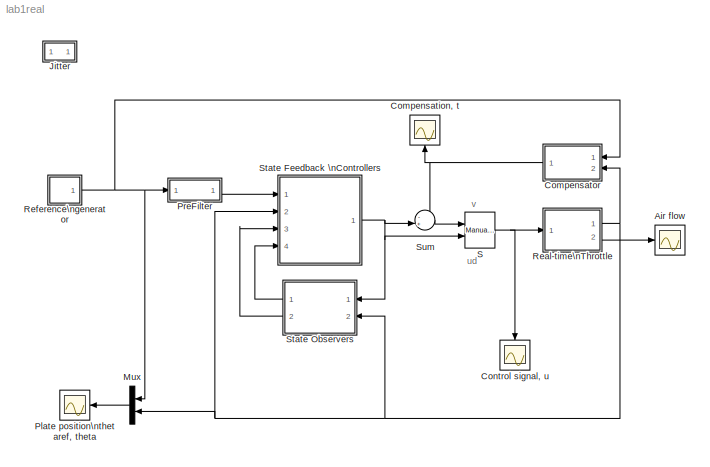
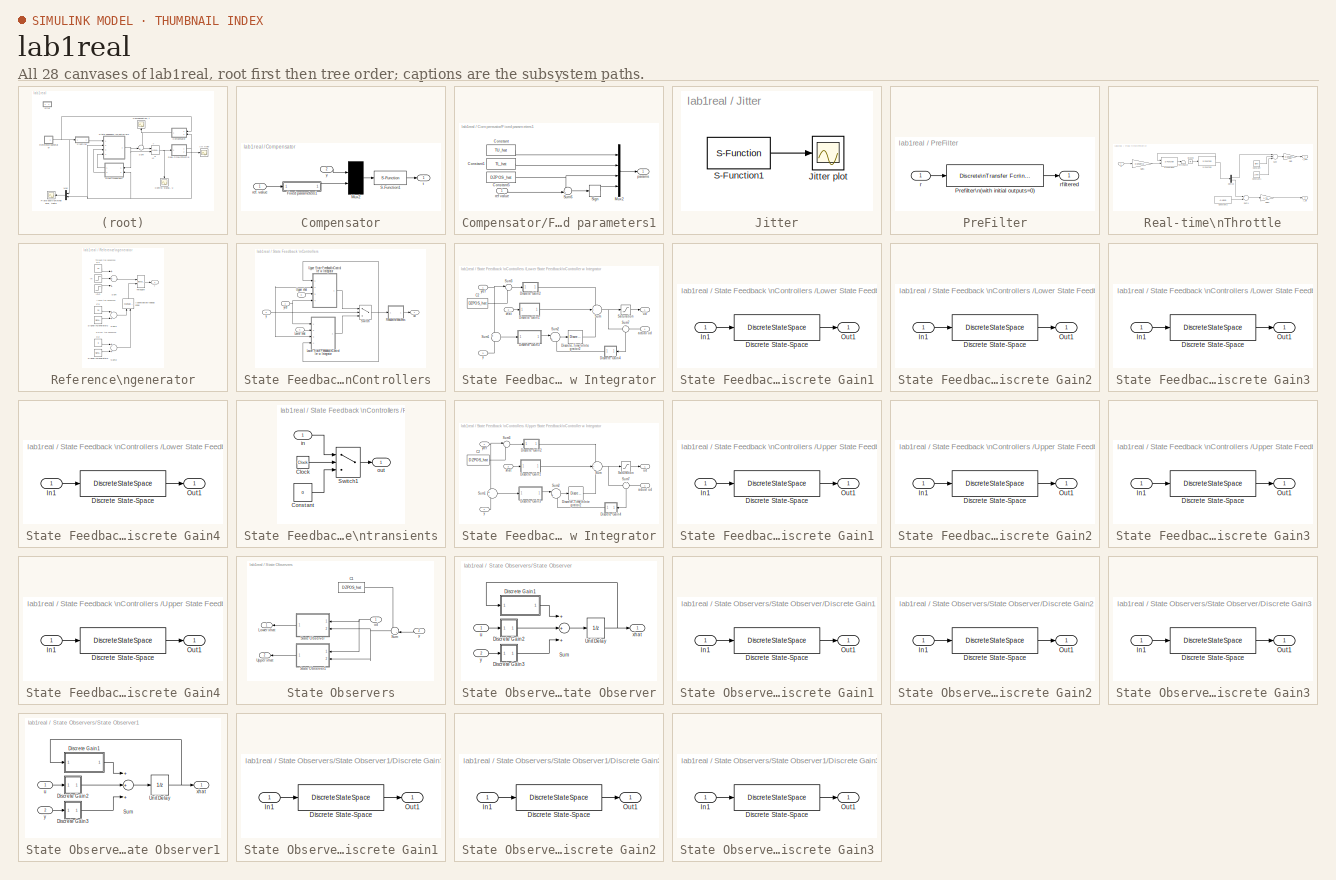
[diagram: thumbnail index - all 28 canvases of the model, root first then tree order]
MODEL lab1real
KIND model
BLOCK [Scope] Air flow
  DataFormat = StructureWithTime
  Floating = off
  LimitDataPoints = off
  NumInputPorts = 1
  Ports = [1]
  SID = 1
  SampleTime = 0
  SaveName = ScopeData1
  ShowLegends = off
  TimeRange = 12
  YMax = 45
  YMin = 17.5
BLOCK [Scope] Compensation, t
  DataFormat = StructureWithTime
  Floating = off
  LimitDataPoints = off
  NumInputPorts = 1
  Ports = [1]
  SID = 2
  SampleTime = 0
  ShowLegends = off
  TimeRange = 20
  YMax = 1
  YMin = -1.25
BLOCK [SubSystem] Compensator
  FunctionWithSeparateData = off
  MaskHideContents = off
  MinAlgLoopOccurrences = off
  Opaque = off
  Ports = [2, 1]
  PropExecContextOutsideSubsystem = off
  RTWSystemCode = Auto
  RequestExecContextInheritance = off
  SID = 3
BLOCK [SubSystem] Compensator/Fixed parameters1
  FunctionWithSeparateData = off
  MaskHideContents = off
  MinAlgLoopOccurrences = off
  Opaque = off
  Ports = [1, 1]
  PropExecContextOutsideSubsystem = off
  RTWSystemCode = Auto
  RequestExecContextInheritance = off
  SID = 182
BLOCK [Constant] Compensator/Fixed parameters1/Constant
  SID = 184
  Value = TU_hat
BLOCK [Constant] Compensator/Fixed parameters1/Constant1
  SID = 185
  Value = TL_hat
BLOCK [Constant] Compensator/Fixed parameters1/Constant5
  SID = 186
  Value = DZPOS_hat
BLOCK [Mux] Compensator/Fixed parameters1/Mux2
  DisplayOption = bar
  Ports = [4, 1]
  SID = 187
BLOCK [Signum] Compensator/Fixed parameters1/Sign
  SID = 188
BLOCK [Sum] Compensator/Fixed parameters1/Sum6
  IconShape = round
  Inputs = -+|
  Ports = [2, 1]
  SID = 189
BLOCK [Outport] Compensator/Fixed parameters1/params
  IconDisplay = Port number
  SID = 190
BLOCK [Inport] Compensator/Fixed parameters1/ref value
  IconDisplay = Port number
  SID = 183
BLOCK [Mux] Compensator/Mux2
  Inputs = 2
  Ports = [2, 1]
  SID = 15
BLOCK [S-Function] Compensator/S-Function1
  EnableBusSupport = off
  FunctionName = compensator
  Parameters = h 0*fixwidth/2 -0*fixwidth/2
  Ports = [1, 1]
  SID = 16
BLOCK [Inport] Compensator/ref. value
  IconDisplay = Port number
  SID = 4
BLOCK [Outport] Compensator/t
  IconDisplay = Port number
  SID = 17
BLOCK [Inport] Compensator/y
  IconDisplay = Port number
  Port = 2
  SID = 5
BLOCK [Scope] Control signal, u
  DataFormat = StructureWithTime
  Floating = off
  LimitDataPoints = off
  NumInputPorts = 1
  Ports = [1]
  SID = 18
  SampleTime = 0
  ShowLegends = off
  TimeRange = 12
  YMax = 2
  YMin = 0.8
  ZoomMode = xonly
BLOCK [SubSystem] Jitter
  FunctionWithSeparateData = off
  MaskHideContents = off
  MinAlgLoopOccurrences = off
  Opaque = off
  Ports = []
  PropExecContextOutsideSubsystem = off
  RTWSystemCode = Auto
  RequestExecContextInheritance = off
  SID = 19
BLOCK [Scope] Jitter/Jitter plot
  DataFormat = StructureWithTime
  Floating = off
  LimitDataPoints = off
  NumInputPorts = 1
  Ports = [1]
  SID = 20
  SampleTime = 0
  ShowLegends = off
  TimeRange = 10
  YMax = 1
  YMin = 5.55112e-17
  ZoomMode = xonly
BLOCK [S-Function] Jitter/S-Function1
  EnableBusSupport = off
  FunctionName = realtimer
  Parameters = h
  Ports = [0, 1]
  SID = 21
BLOCK [Mux] Mux
  DisplayOption = bar
  Inputs = 2
  Ports = [2, 1]
  SID = 22
BLOCK [Scope] Plate position\nthetaref, theta
  DataFormat = StructureWithTime
  Floating = off
  LimitDataPoints = off
  NumInputPorts = 1
  Ports = [1]
  SID = 23
  SampleTime = 0
  ShowLegends = off
  TimeRange = 12
  YMax = 45
  YMin = 17.5
BLOCK [SubSystem] PreFilter
  FunctionWithSeparateData = off
  MaskHideContents = off
  MinAlgLoopOccurrences = off
  Opaque = off
  Ports = [1, 1]
  PropExecContextOutsideSubsystem = off
  RTWSystemCode = Auto
  RequestExecContextInheritance = off
  SID = 24
BLOCK [Reference] PreFilter/Prefilter\n(with initial outputs=0)  REF=simulink_extras/Additional\nDiscrete/Discrete\nTransfer Fcn\n(with initial outputs)
  D = [835 -1596 763]
  N = [21.3 1 -20.3]
  Ports = [1, 1]
  SID = 26
  SourceBlock = simulink_extras/Additional\nDiscrete/Discrete\nTransfer Fcn\n(with initial outputs)
  SourceType = Discrete Transfer Function with Initial Outputs
  TS = h
  U0 = [DZPOS_hat]
  Y0 = DZPOS_hat
BLOCK [Inport] PreFilter/r
  IconDisplay = Port number
  SID = 25
BLOCK [Outport] PreFilter/rfiltered
  IconDisplay = Port number
  SID = 27
BLOCK [SubSystem] Real-time\nThrottle
  FunctionWithSeparateData = off
  MaskHideContents = off
  MinAlgLoopOccurrences = off
  Opaque = off
  Ports = [1, 2]
  PropExecContextOutsideSubsystem = off
  RTWSystemCode = Auto
  RequestExecContextInheritance = off
  SID = 28
BLOCK [Constant] Real-time\nThrottle/Constant
  SID = 30
  Value = Offset
BLOCK [Constant] Real-time\nThrottle/Constant1
  SID = 31
  Value = Lower
BLOCK [Constant] Real-time\nThrottle/Constant2
  SID = 32
  Value = -0.4615
BLOCK [Demux] Real-time\nThrottle/Demux
  Outputs = 2
  Ports = [1, 2]
  SID = 33
BLOCK [Gain] Real-time\nThrottle/Gain
  Gain = Convert
  SID = 34
BLOCK [Gain] Real-time\nThrottle/Gain1
  Gain = Convert2
  SID = 35
BLOCK [Gain] Real-time\nThrottle/Gain2
  Gain = 1.73
  SID = 36
BLOCK [Ground] Real-time\nThrottle/Ground
  SID = 37
BLOCK [S-Function] Real-time\nThrottle/S-Function
  EnableBusSupport = off
  FunctionName = analogin
  Parameters = h [0 1]
  Ports = [1, 2]
  SID = 38
BLOCK [S-Function] Real-time\nThrottle/S-Function2
  EnableBusSupport = off
  FunctionName = analogout
  Parameters = h [0]
  Ports = [2, 1]
  SID = 39
BLOCK [Sum] Real-time\nThrottle/Sum
  Inputs = +--
  Ports = [3, 1]
  SID = 40
BLOCK [Sum] Real-time\nThrottle/Sum1
  Ports = [2, 1]
  SID = 41
BLOCK [Terminator] Real-time\nThrottle/Terminator
  SID = 42
BLOCK [Inport] Real-time\nThrottle/u
  IconDisplay = Port number
  SID = 29
BLOCK [Outport] Real-time\nThrottle/y_air
  IconDisplay = Port number
  Port = 2
  SID = 44
BLOCK [Outport] Real-time\nThrottle/y_pos
  IconDisplay = Port number
  SID = 43
BLOCK [SubSystem] Reference\ngenerator
  FunctionWithSeparateData = off
  MaskHideContents = off
  MinAlgLoopOccurrences = off
  Opaque = off
  Ports = [0, 1]
  PropExecContextOutsideSubsystem = off
  RTWSystemCode = Auto
  RequestExecContextInheritance = off
  SID = 45
BLOCK [Reference] Reference\ngenerator/Above//below\ndeadzone  REF=simulink/Signal\nRouting/Manual Switch
  Ports = [2, 1]
  SID = 48
  SourceBlock = simulink/Signal\nRouting/Manual Switch
  SourceType = Manual Switch
  action = 0
  sw = 1
  varsize = off
BLOCK [Constant] Reference\ngenerator/C2
  SID = 49
  Value = 8
BLOCK [Constant] Reference\ngenerator/C3
  SID = 50
  Value = 30
BLOCK [Constant] Reference\ngenerator/C4
  SID = 51
  Value = 15
BLOCK [SignalGenerator] Reference\ngenerator/Signal\nGenerator2
  Amplitude = -5
  Frequency = 0.125
  Ports = [0, 1]
  SID = 52
  WaveForm = square
BLOCK [SignalGenerator] Reference\ngenerator/Signal\nGenerator3
  Amplitude = 5
  Frequency = 0.125
  Ports = [0, 1]
  SID = 53
  WaveForm = square
BLOCK [Sum] Reference\ngenerator/Sum
  Inputs = +++
  Ports = [3, 1]
  SID = 54
BLOCK [Sum] Reference\ngenerator/Sum1
  Ports = [2, 1]
  SID = 55
BLOCK [Sum] Reference\ngenerator/Sum2
  Ports = [2, 1]
  SID = 56
BLOCK [Reference] Reference\ngenerator/Through?  REF=simulink/Signal\nRouting/Manual Switch
  Ports = [2, 1]
  SID = 57
  SourceBlock = simulink/Signal\nRouting/Manual Switch
  SourceType = Manual Switch
  action = 0
  sw = 0
  varsize = off
BLOCK [Step] Reference\ngenerator/\n
  After = -6
  SID = 46
  SampleTime = 0
  Time = 8
BLOCK [Step] Reference\ngenerator/\n\n
  After = 6
  SID = 47
  SampleTime = 0
  Time = 4
BLOCK [Outport] Reference\ngenerator/r
  IconDisplay = Port number
  SID = 58
BLOCK [Reference] S  REF=simulink/Signal\nRouting/Manual Switch
  Ports = [2, 1]
  SID = 62
  SourceBlock = simulink/Signal\nRouting/Manual Switch
  SourceType = Manual Switch
  action = 0
  sw = 1
  varsize = off
BLOCK [SubSystem] State Feedback \nControllers 
  FunctionWithSeparateData = off
  MaskHideContents = off
  MinAlgLoopOccurrences = off
  Opaque = off
  Ports = [4, 1]
  PropExecContextOutsideSubsystem = off
  RTWSystemCode = Auto
  RequestExecContextInheritance = off
  SID = 63
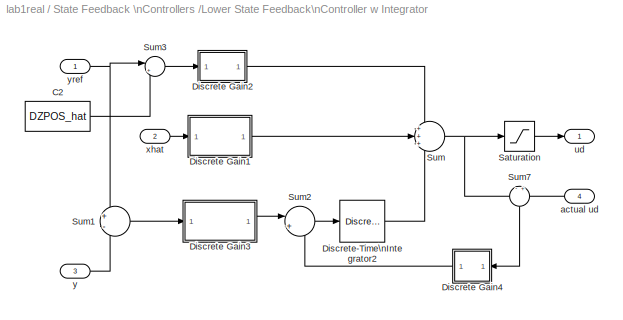
BLOCK [SubSystem] State Feedback \nControllers /Lower State Feedback\nController w Integrator
  FunctionWithSeparateData = off
  MaskHideContents = off
  MinAlgLoopOccurrences = off
  Opaque = off
  Ports = [4, 1]
  PropExecContextOutsideSubsystem = off
  RTWSystemCode = Auto
  RequestExecContextInheritance = off
  SID = 68
BLOCK [Constant] State Feedback \nControllers /Lower State Feedback\nController w Integrator/C2
  SID = 73
  Value = DZPOS_hat
BLOCK [SubSystem] State Feedback \nControllers /Lower State Feedback\nController w Integrator/Discrete Gain1
  FunctionWithSeparateData = off
  MaskCallbackString = |
  MaskDisplay = disp(s)
  MaskEnableString = on,on
  MaskHideContents = off
  MaskIconFrame = on
  MaskIconOpaque = on
  MaskIconRotate = none
  MaskIconUnits = normalized
  MaskInitialization = s = get_param(gcb,'MaskValueString');\ns = s(findstr(s,'|')+1:end);
  MaskPortRotate = default
  MaskPromptString = Sample Time|Gain
  MaskStyleString = edit,edit
  MaskToolTipString = on,on
  MaskTunableValueString = on,on
  MaskType = Discrete Gain
  MaskValueString = h|-lLe(1:3)
  MaskVariables = h=@1;K=@2;
  MaskVisibilityString = on,on
  MinAlgLoopOccurrences = off
  Opaque = off
  Ports = [1, 1]
  PropExecContextOutsideSubsystem = off
  RTWSystemCode = Auto
  RequestExecContextInheritance = off
  SID = 74
BLOCK [DiscreteStateSpace] State Feedback \nControllers /Lower State Feedback\nController w Integrator/Discrete Gain1/Discrete State-Space
  A = 0
  B = zeros(1,size(K,2))
  C = zeros(size(K,1),1)
  D = K
  SID = 76
  SampleTime = h
BLOCK [Inport] State Feedback \nControllers /Lower State Feedback\nController w Integrator/Discrete Gain1/In1
  IconDisplay = Port number
  SID = 75
BLOCK [Outport] State Feedback \nControllers /Lower State Feedback\nController w Integrator/Discrete Gain1/Out1
  IconDisplay = Port number
  SID = 77
BLOCK [SubSystem] State Feedback \nControllers /Lower State Feedback\nController w Integrator/Discrete Gain2
  FunctionWithSeparateData = off
  MaskCallbackString = |
  MaskDisplay = disp(s)
  MaskEnableString = on,on
  MaskHideContents = off
  MaskIconFrame = on
  MaskIconOpaque = on
  MaskIconRotate = none
  MaskIconUnits = normalized
  MaskInitialization = s = get_param(gcb,'MaskValueString');\ns = s(findstr(s,'|')+1:end);
  MaskPortRotate = default
  MaskPromptString = Sample Time|Gain
  MaskStyleString = edit,edit
  MaskToolTipString = on,on
  MaskTunableValueString = on,on
  MaskType = Discrete Gain
  MaskValueString = h|lLc
  MaskVariables = h=@1;K=@2;
  MaskVisibilityString = on,on
  MinAlgLoopOccurrences = off
  Opaque = off
  Ports = [1, 1]
  PropExecContextOutsideSubsystem = off
  RTWSystemCode = Auto
  RequestExecContextInheritance = off
  SID = 78
BLOCK [DiscreteStateSpace] State Feedback \nControllers /Lower State Feedback\nController w Integrator/Discrete Gain2/Discrete State-Space
  A = 0
  B = zeros(1,size(K,2))
  C = zeros(size(K,1),1)
  D = K
  SID = 80
  SampleTime = h
BLOCK [Inport] State Feedback \nControllers /Lower State Feedback\nController w Integrator/Discrete Gain2/In1
  IconDisplay = Port number
  SID = 79
BLOCK [Outport] State Feedback \nControllers /Lower State Feedback\nController w Integrator/Discrete Gain2/Out1
  IconDisplay = Port number
  SID = 81
BLOCK [SubSystem] State Feedback \nControllers /Lower State Feedback\nController w Integrator/Discrete Gain3
  FunctionWithSeparateData = off
  MaskCallbackString = |
  MaskDisplay = disp(s)
  MaskEnableString = on,on
  MaskHideContents = off
  MaskIconFrame = on
  MaskIconOpaque = on
  MaskIconRotate = none
  MaskIconUnits = normalized
  MaskInitialization = s = get_param(gcb,'MaskValueString');\ns = s(findstr(s,'|')+1:end);
  MaskPortRotate = default
  MaskPromptString = Sample Time|Gain
  MaskStyleString = edit,edit
  MaskToolTipString = on,on
  MaskTunableValueString = on,on
  MaskType = Discrete Gain
  MaskValueString = h|-lLe(4)
  MaskVariables = h=@1;K=@2;
  MaskVisibilityString = on,on
  MinAlgLoopOccurrences = off
  Opaque = off
  Ports = [1, 1]
  PropExecContextOutsideSubsystem = off
  RTWSystemCode = Auto
  RequestExecContextInheritance = off
  SID = 82
BLOCK [DiscreteStateSpace] State Feedback \nControllers /Lower State Feedback\nController w Integrator/Discrete Gain3/Discrete State-Space
  A = 0
  B = zeros(1,size(K,2))
  C = zeros(size(K,1),1)
  D = K
  SID = 84
  SampleTime = h
BLOCK [Inport] State Feedback \nControllers /Lower State Feedback\nController w Integrator/Discrete Gain3/In1
  IconDisplay = Port number
  SID = 83
BLOCK [Outport] State Feedback \nControllers /Lower State Feedback\nController w Integrator/Discrete Gain3/Out1
  IconDisplay = Port number
  SID = 85
BLOCK [SubSystem] State Feedback \nControllers /Lower State Feedback\nController w Integrator/Discrete Gain4
  FunctionWithSeparateData = off
  MaskCallbackString = |
  MaskDisplay = disp(s)
  MaskEnableString = on,on
  MaskHideContents = off
  MaskIconFrame = on
  MaskIconOpaque = on
  MaskIconRotate = none
  MaskIconUnits = normalized
  MaskInitialization = s = get_param(gcb,'MaskValueString');\ns = s(findstr(s,'|')+1:end);
  MaskPortRotate = default
  MaskPromptString = Sample Time|Gain
  MaskStyleString = edit,edit
  MaskToolTipString = on,on
  MaskTunableValueString = on,on
  MaskType = Discrete Gain
  MaskValueString = h|TR
  MaskVariables = h=@1;K=@2;
  MaskVisibilityString = on,on
  MinAlgLoopOccurrences = off
  Opaque = off
  Ports = [1, 1]
  PropExecContextOutsideSubsystem = off
  RTWSystemCode = Auto
  RequestExecContextInheritance = off
  SID = 86
BLOCK [DiscreteStateSpace] State Feedback \nControllers /Lower State Feedback\nController w Integrator/Discrete Gain4/Discrete State-Space
  A = 0
  B = zeros(1,size(K,2))
  C = zeros(size(K,1),1)
  D = K
  SID = 88
  SampleTime = h
BLOCK [Inport] State Feedback \nControllers /Lower State Feedback\nController w Integrator/Discrete Gain4/In1
  IconDisplay = Port number
  SID = 87
BLOCK [Outport] State Feedback \nControllers /Lower State Feedback\nController w Integrator/Discrete Gain4/Out1
  IconDisplay = Port number
  SID = 89
BLOCK [DiscreteIntegrator] State Feedback \nControllers /Lower State Feedback\nController w Integrator/Discrete-Time\nIntegrator2
  ICPrevOutput = DiscIntNeverNeededParam
  ICPrevScaledInput = DiscIntNeverNeededParam
  Ports = [1, 1]
  SID = 90
  SampleTime = h
BLOCK [Saturate] State Feedback \nControllers /Lower State Feedback\nController w Integrator/Saturation
  InputPortMap = u0
  LowerLimit = -7
  Ports = [1, 1]
  SID = 91
  UpperLimit = 7
BLOCK [Sum] State Feedback \nControllers /Lower State Feedback\nController w Integrator/Sum
  IconShape = round
  Inputs = +++
  Ports = [3, 1]
  SID = 92
BLOCK [Sum] State Feedback \nControllers /Lower State Feedback\nController w Integrator/Sum1
  IconShape = round
  Inputs = +-
  Ports = [2, 1]
  SID = 93
BLOCK [Sum] State Feedback \nControllers /Lower State Feedback\nController w Integrator/Sum2
  IconShape = round
  Inputs = |++
  Ports = [2, 1]
  SID = 94
BLOCK [Sum] State Feedback \nControllers /Lower State Feedback\nController w Integrator/Sum3
  IconShape = round
  Inputs = |+-
  Ports = [2, 1]
  SID = 95
BLOCK [Sum] State Feedback \nControllers /Lower State Feedback\nController w Integrator/Sum7
  IconShape = round
  Inputs = -+
  Ports = [2, 1]
  SID = 96
BLOCK [Inport] State Feedback \nControllers /Lower State Feedback\nController w Integrator/actual ud
  IconDisplay = Port number
  Port = 4
  SID = 72
BLOCK [Outport] State Feedback \nControllers /Lower State Feedback\nController w Integrator/ud
  IconDisplay = Port number
  SID = 97
BLOCK [Inport] State Feedback \nControllers /Lower State Feedback\nController w Integrator/xhat
  IconDisplay = Port number
  Port = 2
  SID = 70
BLOCK [Inport] State Feedback \nControllers /Lower State Feedback\nController w Integrator/y
  IconDisplay = Port number
  Port = 3
  SID = 71
BLOCK [Inport] State Feedback \nControllers /Lower State Feedback\nController w Integrator/yref
  IconDisplay = Port number
  SID = 69
BLOCK [Inport] State Feedback \nControllers /Lower xhat
  IconDisplay = Port number
  Port = 4
  SID = 67
BLOCK [SubSystem] State Feedback \nControllers /Reduce\ntransients
  FunctionWithSeparateData = off
  MaskHideContents = off
  MinAlgLoopOccurrences = off
  Opaque = off
  Ports = [1, 1]
  PropExecContextOutsideSubsystem = off
  RTWSystemCode = Auto
  RequestExecContextInheritance = off
  SID = 98
BLOCK [Clock] State Feedback \nControllers /Reduce\ntransients/Clock
  Decimation = 1
  SID = 100
BLOCK [Constant] State Feedback \nControllers /Reduce\ntransients/Constant
  SID = 101
  Value = 0
BLOCK [Switch] State Feedback \nControllers /Reduce\ntransients/Switch1
  SID = 102
  Threshold = 0.03
BLOCK [Inport] State Feedback \nControllers /Reduce\ntransients/in
  IconDisplay = Port number
  SID = 99
BLOCK [Outport] State Feedback \nControllers /Reduce\ntransients/out
  IconDisplay = Port number
  SID = 103
BLOCK [Switch] State Feedback \nControllers /Switch
  SID = 104
  Threshold = DZPOS_hat
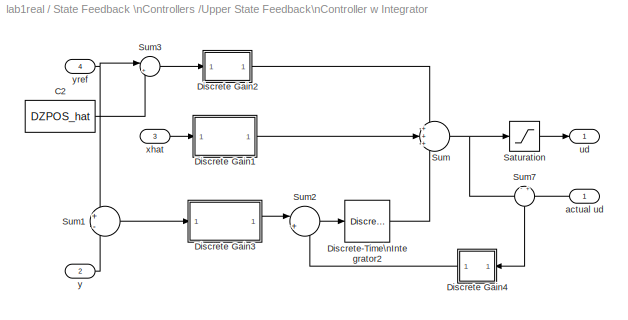
BLOCK [SubSystem] State Feedback \nControllers /Upper State Feedback\nController w Integrator
  FunctionWithSeparateData = off
  MaskHideContents = off
  MinAlgLoopOccurrences = off
  Opaque = off
  Ports = [4, 1]
  PropExecContextOutsideSubsystem = off
  RTWSystemCode = Auto
  RequestExecContextInheritance = off
  SID = 105
BLOCK [Constant] State Feedback \nControllers /Upper State Feedback\nController w Integrator/C2
  SID = 110
  Value = DZPOS_hat
BLOCK [SubSystem] State Feedback \nControllers /Upper State Feedback\nController w Integrator/Discrete Gain1
  FunctionWithSeparateData = off
  MaskCallbackString = |
  MaskDisplay = disp(s)
  MaskEnableString = on,on
  MaskHideContents = off
  MaskIconFrame = on
  MaskIconOpaque = on
  MaskIconRotate = none
  MaskIconUnits = normalized
  MaskInitialization = s = get_param(gcb,'MaskValueString');\ns = s(findstr(s,'|')+1:end);
  MaskPortRotate = default
  MaskPromptString = Sample Time|Gain
  MaskStyleString = edit,edit
  MaskToolTipString = on,on
  MaskTunableValueString = on,on
  MaskType = Discrete Gain
  MaskValueString = h|-uLe(1:3)
  MaskVariables = h=@1;K=@2;
  MaskVisibilityString = on,on
  MinAlgLoopOccurrences = off
  Opaque = off
  Ports = [1, 1]
  PropExecContextOutsideSubsystem = off
  RTWSystemCode = Auto
  RequestExecContextInheritance = off
  SID = 111
BLOCK [DiscreteStateSpace] State Feedback \nControllers /Upper State Feedback\nController w Integrator/Discrete Gain1/Discrete State-Space
  A = 0
  B = zeros(1,size(K,2))
  C = zeros(size(K,1),1)
  D = K
  SID = 113
  SampleTime = h
BLOCK [Inport] State Feedback \nControllers /Upper State Feedback\nController w Integrator/Discrete Gain1/In1
  IconDisplay = Port number
  SID = 112
BLOCK [Outport] State Feedback \nControllers /Upper State Feedback\nController w Integrator/Discrete Gain1/Out1
  IconDisplay = Port number
  SID = 114
BLOCK [SubSystem] State Feedback \nControllers /Upper State Feedback\nController w Integrator/Discrete Gain2
  FunctionWithSeparateData = off
  MaskCallbackString = |
  MaskDisplay = disp(s)
  MaskEnableString = on,on
  MaskHideContents = off
  MaskIconFrame = on
  MaskIconOpaque = on
  MaskIconRotate = none
  MaskIconUnits = normalized
  MaskInitialization = s = get_param(gcb,'MaskValueString');\ns = s(findstr(s,'|')+1:end);
  MaskPortRotate = default
  MaskPromptString = Sample Time|Gain
  MaskStyleString = edit,edit
  MaskToolTipString = on,on
  MaskTunableValueString = on,on
  MaskType = Discrete Gain
  MaskValueString = h|uLc
  MaskVariables = h=@1;K=@2;
  MaskVisibilityString = on,on
  MinAlgLoopOccurrences = off
  Opaque = off
  Ports = [1, 1]
  PropExecContextOutsideSubsystem = off
  RTWSystemCode = Auto
  RequestExecContextInheritance = off
  SID = 115
BLOCK [DiscreteStateSpace] State Feedback \nControllers /Upper State Feedback\nController w Integrator/Discrete Gain2/Discrete State-Space
  A = 0
  B = zeros(1,size(K,2))
  C = zeros(size(K,1),1)
  D = K
  SID = 117
  SampleTime = h
BLOCK [Inport] State Feedback \nControllers /Upper State Feedback\nController w Integrator/Discrete Gain2/In1
  IconDisplay = Port number
  SID = 116
BLOCK [Outport] State Feedback \nControllers /Upper State Feedback\nController w Integrator/Discrete Gain2/Out1
  IconDisplay = Port number
  SID = 118
BLOCK [SubSystem] State Feedback \nControllers /Upper State Feedback\nController w Integrator/Discrete Gain3
  FunctionWithSeparateData = off
  MaskCallbackString = |
  MaskDisplay = disp(s)
  MaskEnableString = on,on
  MaskHideContents = off
  MaskIconFrame = on
  MaskIconOpaque = on
  MaskIconRotate = none
  MaskIconUnits = normalized
  MaskInitialization = s = get_param(gcb,'MaskValueString');\ns = s(findstr(s,'|')+1:end);
  MaskPortRotate = default
  MaskPromptString = Sample Time|Gain
  MaskStyleString = edit,edit
  MaskToolTipString = on,on
  MaskTunableValueString = on,on
  MaskType = Discrete Gain
  MaskValueString = h|-uLe(4)
  MaskVariables = h=@1;K=@2;
  MaskVisibilityString = on,on
  MinAlgLoopOccurrences = off
  Opaque = off
  Ports = [1, 1]
  PropExecContextOutsideSubsystem = off
  RTWSystemCode = Auto
  RequestExecContextInheritance = off
  SID = 119
BLOCK [DiscreteStateSpace] State Feedback \nControllers /Upper State Feedback\nController w Integrator/Discrete Gain3/Discrete State-Space
  A = 0
  B = zeros(1,size(K,2))
  C = zeros(size(K,1),1)
  D = K
  SID = 121
  SampleTime = h
BLOCK [Inport] State Feedback \nControllers /Upper State Feedback\nController w Integrator/Discrete Gain3/In1
  IconDisplay = Port number
  SID = 120
BLOCK [Outport] State Feedback \nControllers /Upper State Feedback\nController w Integrator/Discrete Gain3/Out1
  IconDisplay = Port number
  SID = 122
BLOCK [SubSystem] State Feedback \nControllers /Upper State Feedback\nController w Integrator/Discrete Gain4
  FunctionWithSeparateData = off
  MaskCallbackString = |
  MaskDisplay = disp(s)
  MaskEnableString = on,on
  MaskHideContents = off
  MaskIconFrame = on
  MaskIconOpaque = on
  MaskIconRotate = none
  MaskIconUnits = normalized
  MaskInitialization = s = get_param(gcb,'MaskValueString');\ns = s(findstr(s,'|')+1:end);
  MaskPortRotate = default
  MaskPromptString = Sample Time|Gain
  MaskStyleString = edit,edit
  MaskToolTipString = on,on
  MaskTunableValueString = on,on
  MaskType = Discrete Gain
  MaskValueString = h|TR
  MaskVariables = h=@1;K=@2;
  MaskVisibilityString = on,on
  MinAlgLoopOccurrences = off
  Opaque = off
  Ports = [1, 1]
  PropExecContextOutsideSubsystem = off
  RTWSystemCode = Auto
  RequestExecContextInheritance = off
  SID = 123
BLOCK [DiscreteStateSpace] State Feedback \nControllers /Upper State Feedback\nController w Integrator/Discrete Gain4/Discrete State-Space
  A = 0
  B = zeros(1,size(K,2))
  C = zeros(size(K,1),1)
  D = K
  SID = 125
  SampleTime = h
BLOCK [Inport] State Feedback \nControllers /Upper State Feedback\nController w Integrator/Discrete Gain4/In1
  IconDisplay = Port number
  SID = 124
BLOCK [Outport] State Feedback \nControllers /Upper State Feedback\nController w Integrator/Discrete Gain4/Out1
  IconDisplay = Port number
  SID = 126
BLOCK [DiscreteIntegrator] State Feedback \nControllers /Upper State Feedback\nController w Integrator/Discrete-Time\nIntegrator2
  ICPrevOutput = DiscIntNeverNeededParam
  ICPrevScaledInput = DiscIntNeverNeededParam
  Ports = [1, 1]
  SID = 127
  SampleTime = h
BLOCK [Saturate] State Feedback \nControllers /Upper State Feedback\nController w Integrator/Saturation
  InputPortMap = u0
  LowerLimit = -7
  Ports = [1, 1]
  SID = 128
  UpperLimit = 7
BLOCK [Sum] State Feedback \nControllers /Upper State Feedback\nController w Integrator/Sum
  IconShape = round
  Inputs = +++
  Ports = [3, 1]
  SID = 129
BLOCK [Sum] State Feedback \nControllers /Upper State Feedback\nController w Integrator/Sum1
  IconShape = round
  Inputs = +-
  Ports = [2, 1]
  SID = 130
BLOCK [Sum] State Feedback \nControllers /Upper State Feedback\nController w Integrator/Sum2
  IconShape = round
  Inputs = |++
  Ports = [2, 1]
  SID = 131
BLOCK [Sum] State Feedback \nControllers /Upper State Feedback\nController w Integrator/Sum3
  IconShape = round
  Inputs = |+-
  Ports = [2, 1]
  SID = 132
BLOCK [Sum] State Feedback \nControllers /Upper State Feedback\nController w Integrator/Sum7
  IconShape = round
  Inputs = -+
  Ports = [2, 1]
  SID = 133
BLOCK [Inport] State Feedback \nControllers /Upper State Feedback\nController w Integrator/actual ud
  IconDisplay = Port number
  SID = 106
BLOCK [Outport] State Feedback \nControllers /Upper State Feedback\nController w Integrator/ud
  IconDisplay = Port number
  SID = 134
BLOCK [Inport] State Feedback \nControllers /Upper State Feedback\nController w Integrator/xhat
  IconDisplay = Port number
  Port = 3
  SID = 108
BLOCK [Inport] State Feedback \nControllers /Upper State Feedback\nController w Integrator/y
  IconDisplay = Port number
  Port = 2
  SID = 107
BLOCK [Inport] State Feedback \nControllers /Upper State Feedback\nController w Integrator/yref
  IconDisplay = Port number
  Port = 4
  SID = 109
BLOCK [Inport] State Feedback \nControllers /Upper xhat
  IconDisplay = Port number
  Port = 3
  SID = 66
BLOCK [Outport] State Feedback \nControllers /ud
  IconDisplay = Port number
  SID = 135
BLOCK [Inport] State Feedback \nControllers /y
  IconDisplay = Port number
  Port = 2
  SID = 65
BLOCK [Inport] State Feedback \nControllers /yref
  IconDisplay = Port number
  SID = 64
BLOCK [SubSystem] State Observers
  FunctionWithSeparateData = off
  MaskHideContents = off
  MinAlgLoopOccurrences = off
  Opaque = off
  Ports = [2, 2]
  PropExecContextOutsideSubsystem = off
  RTWSystemCode = Auto
  RequestExecContextInheritance = off
  SID = 136
BLOCK [Constant] State Observers/C1
  SID = 139
  Value = DZPOS_hat
BLOCK [Outport] State Observers/Lower xhat
  IconDisplay = Port number
  SID = 177
BLOCK [SubSystem] State Observers/State Observer
  FunctionWithSeparateData = off
  MaskHideContents = off
  MinAlgLoopOccurrences = off
  Opaque = off
  Ports = [2, 1]
  PropExecContextOutsideSubsystem = off
  RTWSystemCode = Auto
  RequestExecContextInheritance = off
  SID = 140
BLOCK [SubSystem] State Observers/State Observer/Discrete Gain1
  FunctionWithSeparateData = off
  MaskCallbackString = |
  MaskDisplay = disp(s)
  MaskEnableString = on,on
  MaskHideContents = off
  MaskIconFrame = on
  MaskIconOpaque = on
  MaskIconRotate = none
  MaskIconUnits = normalized
  MaskInitialization = s = get_param(gcb,'MaskValueString');\ns = s(findstr(s,'|')+1:end);
  MaskPortRotate = default
  MaskPromptString = Sample Time|Gain
  MaskStyleString = edit,edit
  MaskToolTipString = on,on
  MaskTunableValueString = on,on
  MaskType = Discrete Gain
  MaskValueString = h|lPHI-lK*lC
  MaskVariables = h=@1;K=@2;
  MaskVisibilityString = on,on
  MinAlgLoopOccurrences = off
  Opaque = off
  Ports = [1, 1]
  PropExecContextOutsideSubsystem = off
  RTWSystemCode = Auto
  RequestExecContextInheritance = off
  SID = 143
BLOCK [DiscreteStateSpace] State Observers/State Observer/Discrete Gain1/Discrete State-Space
  A = 0
  B = zeros(1,size(K,2))
  C = zeros(size(K,1),1)
  D = K
  SID = 145
  SampleTime = h
BLOCK [Inport] State Observers/State Observer/Discrete Gain1/In1
  IconDisplay = Port number
  SID = 144
BLOCK [Outport] State Observers/State Observer/Discrete Gain1/Out1
  IconDisplay = Port number
  SID = 146
BLOCK [SubSystem] State Observers/State Observer/Discrete Gain2
  FunctionWithSeparateData = off
  MaskCallbackString = |
  MaskDisplay = disp(s)
  MaskEnableString = on,on
  MaskHideContents = off
  MaskIconFrame = on
  MaskIconOpaque = on
  MaskIconRotate = none
  MaskIconUnits = normalized
  MaskInitialization = s = get_param(gcb,'MaskValueString');\ns = s(findstr(s,'|')+1:end);
  MaskPortRotate = default
  MaskPromptString = Sample Time|Gain
  MaskStyleString = edit,edit
  MaskToolTipString = on,on
  MaskTunableValueString = on,on
  MaskType = Discrete Gain
  MaskValueString = h|lGAM
  MaskVariables = h=@1;K=@2;
  MaskVisibilityString = on,on
  MinAlgLoopOccurrences = off
  Opaque = off
  Ports = [1, 1]
  PropExecContextOutsideSubsystem = off
  RTWSystemCode = Auto
  RequestExecContextInheritance = off
  SID = 147
BLOCK [DiscreteStateSpace] State Observers/State Observer/Discrete Gain2/Discrete State-Space
  A = 0
  B = zeros(1,size(K,2))
  C = zeros(size(K,1),1)
  D = K
  SID = 149
  SampleTime = h
BLOCK [Inport] State Observers/State Observer/Discrete Gain2/In1
  IconDisplay = Port number
  SID = 148
BLOCK [Outport] State Observers/State Observer/Discrete Gain2/Out1
  IconDisplay = Port number
  SID = 150
BLOCK [SubSystem] State Observers/State Observer/Discrete Gain3
  FunctionWithSeparateData = off
  MaskCallbackString = |
  MaskDisplay = disp(s)
  MaskEnableString = on,on
  MaskHideContents = off
  MaskIconFrame = on
  MaskIconOpaque = on
  MaskIconRotate = none
  MaskIconUnits = normalized
  MaskInitialization = s = get_param(gcb,'MaskValueString');\ns = s(findstr(s,'|')+1:end);
  MaskPortRotate = default
  MaskPromptString = Sample Time|Gain
  MaskStyleString = edit,edit
  MaskToolTipString = on,on
  MaskTunableValueString = on,on
  MaskType = Discrete Gain
  MaskValueString = h|lK
  MaskVariables = h=@1;K=@2;
  MaskVisibilityString = on,on
  MinAlgLoopOccurrences = off
  Opaque = off
  Ports = [1, 1]
  PropExecContextOutsideSubsystem = off
  RTWSystemCode = Auto
  RequestExecContextInheritance = off
  SID = 151
BLOCK [DiscreteStateSpace] State Observers/State Observer/Discrete Gain3/Discrete State-Space
  A = 0
  B = zeros(1,size(K,2))
  C = zeros(size(K,1),1)
  D = K
  SID = 153
  SampleTime = h
BLOCK [Inport] State Observers/State Observer/Discrete Gain3/In1
  IconDisplay = Port number
  SID = 152
BLOCK [Outport] State Observers/State Observer/Discrete Gain3/Out1
  IconDisplay = Port number
  SID = 154
BLOCK [Sum] State Observers/State Observer/Sum
  Inputs = +++
  Ports = [3, 1]
  SID = 155
BLOCK [UnitDelay] State Observers/State Observer/Unit Delay
  SID = 156
  SampleTime = h
BLOCK [Inport] State Observers/State Observer/u
  IconDisplay = Port number
  SID = 141
BLOCK [Outport] State Observers/State Observer/xhat
  IconDisplay = Port number
  SID = 157
BLOCK [Inport] State Observers/State Observer/y
  IconDisplay = Port number
  Port = 2
  SID = 142
BLOCK [SubSystem] State Observers/State Observer1
  FunctionWithSeparateData = off
  MaskHideContents = off
  MinAlgLoopOccurrences = off
  Opaque = off
  Ports = [2, 1]
  PropExecContextOutsideSubsystem = off
  RTWSystemCode = Auto
  RequestExecContextInheritance = off
  SID = 158
BLOCK [SubSystem] State Observers/State Observer1/Discrete Gain1
  FunctionWithSeparateData = off
  MaskCallbackString = |
  MaskDisplay = disp(s)
  MaskEnableString = on,on
  MaskHideContents = off
  MaskIconFrame = on
  MaskIconOpaque = on
  MaskIconRotate = none
  MaskIconUnits = normalized
  MaskInitialization = s = get_param(gcb,'MaskValueString');\ns = s(findstr(s,'|')+1:end);
  MaskPortRotate = default
  MaskPromptString = Sample Time|Gain
  MaskStyleString = edit,edit
  MaskToolTipString = on,on
  MaskTunableValueString = on,on
  MaskType = Discrete Gain
  MaskValueString = h|uPHI-uK*uC
  MaskVariables = h=@1;K=@2;
  MaskVisibilityString = on,on
  MinAlgLoopOccurrences = off
  Opaque = off
  Ports = [1, 1]
  PropExecContextOutsideSubsystem = off
  RTWSystemCode = Auto
  RequestExecContextInheritance = off
  SID = 161
BLOCK [DiscreteStateSpace] State Observers/State Observer1/Discrete Gain1/Discrete State-Space
  A = 0
  B = zeros(1,size(K,2))
  C = zeros(size(K,1),1)
  D = K
  SID = 163
  SampleTime = h
BLOCK [Inport] State Observers/State Observer1/Discrete Gain1/In1
  IconDisplay = Port number
  SID = 162
BLOCK [Outport] State Observers/State Observer1/Discrete Gain1/Out1
  IconDisplay = Port number
  SID = 164
BLOCK [SubSystem] State Observers/State Observer1/Discrete Gain2
  FunctionWithSeparateData = off
  MaskCallbackString = |
  MaskDisplay = disp(s)
  MaskEnableString = on,on
  MaskHideContents = off
  MaskIconFrame = on
  MaskIconOpaque = on
  MaskIconRotate = none
  MaskIconUnits = normalized
  MaskInitialization = s = get_param(gcb,'MaskValueString');\ns = s(findstr(s,'|')+1:end);
  MaskPortRotate = default
  MaskPromptString = Sample Time|Gain
  MaskStyleString = edit,edit
  MaskToolTipString = on,on
  MaskTunableValueString = on,on
  MaskType = Discrete Gain
  MaskValueString = h|uGAM
  MaskVariables = h=@1;K=@2;
  MaskVisibilityString = on,on
  MinAlgLoopOccurrences = off
  Opaque = off
  Ports = [1, 1]
  PropExecContextOutsideSubsystem = off
  RTWSystemCode = Auto
  RequestExecContextInheritance = off
  SID = 165
BLOCK [DiscreteStateSpace] State Observers/State Observer1/Discrete Gain2/Discrete State-Space
  A = 0
  B = zeros(1,size(K,2))
  C = zeros(size(K,1),1)
  D = K
  SID = 167
  SampleTime = h
BLOCK [Inport] State Observers/State Observer1/Discrete Gain2/In1
  IconDisplay = Port number
  SID = 166
BLOCK [Outport] State Observers/State Observer1/Discrete Gain2/Out1
  IconDisplay = Port number
  SID = 168
BLOCK [SubSystem] State Observers/State Observer1/Discrete Gain3
  FunctionWithSeparateData = off
  MaskCallbackString = |
  MaskDisplay = disp(s)
  MaskEnableString = on,on
  MaskHideContents = off
  MaskIconFrame = on
  MaskIconOpaque = on
  MaskIconRotate = none
  MaskIconUnits = normalized
  MaskInitialization = s = get_param(gcb,'MaskValueString');\ns = s(findstr(s,'|')+1:end);
  MaskPortRotate = default
  MaskPromptString = Sample Time|Gain
  MaskStyleString = edit,edit
  MaskToolTipString = on,on
  MaskTunableValueString = on,on
  MaskType = Discrete Gain
  MaskValueString = h|uK
  MaskVariables = h=@1;K=@2;
  MaskVisibilityString = on,on
  MinAlgLoopOccurrences = off
  Opaque = off
  Ports = [1, 1]
  PropExecContextOutsideSubsystem = off
  RTWSystemCode = Auto
  RequestExecContextInheritance = off
  SID = 169
BLOCK [DiscreteStateSpace] State Observers/State Observer1/Discrete Gain3/Discrete State-Space
  A = 0
  B = zeros(1,size(K,2))
  C = zeros(size(K,1),1)
  D = K
  SID = 171
  SampleTime = h
BLOCK [Inport] State Observers/State Observer1/Discrete Gain3/In1
  IconDisplay = Port number
  SID = 170
BLOCK [Outport] State Observers/State Observer1/Discrete Gain3/Out1
  IconDisplay = Port number
  SID = 172
BLOCK [Sum] State Observers/State Observer1/Sum
  Inputs = +++
  Ports = [3, 1]
  SID = 173
BLOCK [UnitDelay] State Observers/State Observer1/Unit Delay
  SID = 174
  SampleTime = h
BLOCK [Inport] State Observers/State Observer1/u
  IconDisplay = Port number
  SID = 159
BLOCK [Outport] State Observers/State Observer1/xhat
  IconDisplay = Port number
  SID = 175
BLOCK [Inport] State Observers/State Observer1/y
  IconDisplay = Port number
  Port = 2
  SID = 160
BLOCK [Sum] State Observers/Sum
  IconShape = round
  Inputs = -+|
  Ports = [2, 1]
  SID = 176
BLOCK [Outport] State Observers/Upper xhat
  IconDisplay = Port number
  Port = 2
  SID = 178
BLOCK [Inport] State Observers/ud
  IconDisplay = Port number
  SID = 137
BLOCK [Inport] State Observers/y
  IconDisplay = Port number
  Port = 2
  SID = 138
BLOCK [Sum] Sum
  IconShape = round
  Inputs = -+|
  Ports = [2, 1]
  SID = 179
ANNOTATION (root): ud
ANNOTATION (root): v
ANNOTATION Reference\ngenerator: Above the deadzone
ANNOTATION Reference\ngenerator: Below the deadzone
ANNOTATION Reference\ngenerator: Through the deadzone
LINE Compensator/Fixed parameters1/Constant1:1 -> Compensator/Fixed parameters1/Mux2:2
NET Compensator/Fixed parameters1/Constant5:1 -> Compensator/Fixed parameters1/Mux2:3, Compensator/Fixed parameters1/Sum6:1
LINE Compensator/Fixed parameters1/Constant:1 -> Compensator/Fixed parameters1/Mux2:1
LINE Compensator/Fixed parameters1/Mux2:1 -> Compensator/Fixed parameters1/params:1
LINE Compensator/Fixed parameters1/Sign:1 -> Compensator/Fixed parameters1/Mux2:4
LINE Compensator/Fixed parameters1/Sum6:1 -> Compensator/Fixed parameters1/Sign:1
LINE Compensator/Fixed parameters1/ref value:1 -> Compensator/Fixed parameters1/Sum6:2
LINE Compensator/Fixed parameters1:1 -> Compensator/Mux2:2
LINE Compensator/Mux2:1 -> Compensator/S-Function1:1
LINE Compensator/S-Function1:1 -> Compensator/t:1
LINE Compensator/ref. value:1 -> Compensator/Fixed parameters1:1
LINE Compensator/y:1 -> Compensator/Mux2:1
NET Compensator:1 -> Compensation, t:1, Sum:1
LINE Jitter/S-Function1:1 -> Jitter/Jitter plot:1
LINE Mux:1 -> Plate position\nthetaref, theta:1
LINE PreFilter/Prefilter\n(with initial outputs=0):1 -> PreFilter/rfiltered:1
LINE PreFilter/r:1 -> PreFilter/Prefilter\n(with initial outputs=0):1
LINE PreFilter:1 -> State Feedback \nControllers :1
LINE Real-time\nThrottle/Constant1:1 -> Real-time\nThrottle/Sum:3
LINE Real-time\nThrottle/Constant2:1 -> Real-time\nThrottle/Sum1:2
LINE Real-time\nThrottle/Constant:1 -> Real-time\nThrottle/Sum:2
LINE Real-time\nThrottle/Demux:1 -> Real-time\nThrottle/Sum:1
LINE Real-time\nThrottle/Demux:2 -> Real-time\nThrottle/Sum1:1
LINE Real-time\nThrottle/Gain1:1 -> Real-time\nThrottle/S-Function2:2
LINE Real-time\nThrottle/Gain2:1 -> Real-time\nThrottle/y_air:1
LINE Real-time\nThrottle/Gain:1 -> Real-time\nThrottle/y_pos:1
LINE Real-time\nThrottle/Ground:1 -> Real-time\nThrottle/S-Function:1
LINE Real-time\nThrottle/S-Function2:1 -> Real-time\nThrottle/Terminator:1
LINE Real-time\nThrottle/S-Function:1 -> Real-time\nThrottle/S-Function2:1
LINE Real-time\nThrottle/S-Function:2 -> Real-time\nThrottle/Demux:1
LINE Real-time\nThrottle/Sum1:1 -> Real-time\nThrottle/Gain2:1
LINE Real-time\nThrottle/Sum:1 -> Real-time\nThrottle/Gain:1
LINE Real-time\nThrottle/u:1 -> Real-time\nThrottle/Gain1:1
NET Real-time\nThrottle:1 -> Compensator:2, Mux:2, State Feedback \nControllers :2, State Observers:2
LINE Real-time\nThrottle:2 -> Air flow:1
LINE Reference\ngenerator/Above//below\ndeadzone:1 -> Reference\ngenerator/Through?:2
LINE Reference\ngenerator/C2:1 -> Reference\ngenerator/Sum2:1
LINE Reference\ngenerator/C3:1 -> Reference\ngenerator/Sum1:1
LINE Reference\ngenerator/C4:1 -> Reference\ngenerator/Sum:1
LINE Reference\ngenerator/Signal\nGenerator2:1 -> Reference\ngenerator/Sum1:2
LINE Reference\ngenerator/Signal\nGenerator3:1 -> Reference\ngenerator/Sum2:2
LINE Reference\ngenerator/Sum1:1 -> Reference\ngenerator/Above//below\ndeadzone:1
LINE Reference\ngenerator/Sum2:1 -> Reference\ngenerator/Above//below\ndeadzone:2
LINE Reference\ngenerator/Sum:1 -> Reference\ngenerator/Through?:1
LINE Reference\ngenerator/Through?:1 -> Reference\ngenerator/r:1
LINE Reference\ngenerator/\n:1 -> Reference\ngenerator/Sum:2
LINE Reference\ngenerator/\n\n:1 -> Reference\ngenerator/Sum:3
NET Reference\ngenerator:1 -> Compensator:1, Mux:1, PreFilter:1
NET S:1 -> Control signal, u:1, Real-time\nThrottle:1
LINE State Feedback \nControllers /Lower State Feedback\nController w Integrator/C2:1 -> State Feedback \nControllers /Lower State Feedback\nController w Integrator/Sum3:2
LINE State Feedback \nControllers /Lower State Feedback\nController w Integrator/Discrete Gain1/Discrete State-Space:1 -> State Feedback \nControllers /Lower State Feedback\nController w Integrator/Discrete Gain1/Out1:1
LINE State Feedback \nControllers /Lower State Feedback\nController w Integrator/Discrete Gain1/In1:1 -> State Feedback \nControllers /Lower State Feedback\nController w Integrator/Discrete Gain1/Discrete State-Space:1
LINE State Feedback \nControllers /Lower State Feedback\nController w Integrator/Discrete Gain1:1 -> State Feedback \nControllers /Lower State Feedback\nController w Integrator/Sum:2
LINE State Feedback \nControllers /Lower State Feedback\nController w Integrator/Discrete Gain2/Discrete State-Space:1 -> State Feedback \nControllers /Lower State Feedback\nController w Integrator/Discrete Gain2/Out1:1
LINE State Feedback \nControllers /Lower State Feedback\nController w Integrator/Discrete Gain2/In1:1 -> State Feedback \nControllers /Lower State Feedback\nController w Integrator/Discrete Gain2/Discrete State-Space:1
LINE State Feedback \nControllers /Lower State Feedback\nController w Integrator/Discrete Gain2:1 -> State Feedback \nControllers /Lower State Feedback\nController w Integrator/Sum:1
LINE State Feedback \nControllers /Lower State Feedback\nController w Integrator/Discrete Gain3/Discrete State-Space:1 -> State Feedback \nControllers /Lower State Feedback\nController w Integrator/Discrete Gain3/Out1:1
LINE State Feedback \nControllers /Lower State Feedback\nController w Integrator/Discrete Gain3/In1:1 -> State Feedback \nControllers /Lower State Feedback\nController w Integrator/Discrete Gain3/Discrete State-Space:1
LINE State Feedback \nControllers /Lower State Feedback\nController w Integrator/Discrete Gain3:1 -> State Feedback \nControllers /Lower State Feedback\nController w Integrator/Sum2:1
LINE State Feedback \nControllers /Lower State Feedback\nController w Integrator/Discrete Gain4/Discrete State-Space:1 -> State Feedback \nControllers /Lower State Feedback\nController w Integrator/Discrete Gain4/Out1:1
LINE State Feedback \nControllers /Lower State Feedback\nController w Integrator/Discrete Gain4/In1:1 -> State Feedback \nControllers /Lower State Feedback\nController w Integrator/Discrete Gain4/Discrete State-Space:1
LINE State Feedback \nControllers /Lower State Feedback\nController w Integrator/Discrete Gain4:1 -> State Feedback \nControllers /Lower State Feedback\nController w Integrator/Sum2:2
LINE State Feedback \nControllers /Lower State Feedback\nController w Integrator/Discrete-Time\nIntegrator2:1 -> State Feedback \nControllers /Lower State Feedback\nController w Integrator/Sum:3
LINE State Feedback \nControllers /Lower State Feedback\nController w Integrator/Saturation:1 -> State Feedback \nControllers /Lower State Feedback\nController w Integrator/ud:1
LINE State Feedback \nControllers /Lower State Feedback\nController w Integrator/Sum1:1 -> State Feedback \nControllers /Lower State Feedback\nController w Integrator/Discrete Gain3:1
LINE State Feedback \nControllers /Lower State Feedback\nController w Integrator/Sum2:1 -> State Feedback \nControllers /Lower State Feedback\nController w Integrator/Discrete-Time\nIntegrator2:1
LINE State Feedback \nControllers /Lower State Feedback\nController w Integrator/Sum3:1 -> State Feedback \nControllers /Lower State Feedback\nController w Integrator/Discrete Gain2:1
LINE State Feedback \nControllers /Lower State Feedback\nController w Integrator/Sum7:1 -> State Feedback \nControllers /Lower State Feedback\nController w Integrator/Discrete Gain4:1
NET State Feedback \nControllers /Lower State Feedback\nController w Integrator/Sum:1 -> State Feedback \nControllers /Lower State Feedback\nController w Integrator/Saturation:1, State Feedback \nControllers /Lower State Feedback\nController w Integrator/Sum7:1
LINE State Feedback \nControllers /Lower State Feedback\nController w Integrator/actual ud:1 -> State Feedback \nControllers /Lower State Feedback\nController w Integrator/Sum7:2
LINE State Feedback \nControllers /Lower State Feedback\nController w Integrator/xhat:1 -> State Feedback \nControllers /Lower State Feedback\nController w Integrator/Discrete Gain1:1
LINE State Feedback \nControllers /Lower State Feedback\nController w Integrator/y:1 -> State Feedback \nControllers /Lower State Feedback\nController w Integrator/Sum1:2
NET State Feedback \nControllers /Lower State Feedback\nController w Integrator/yref:1 -> State Feedback \nControllers /Lower State Feedback\nController w Integrator/Sum1:1, State Feedback \nControllers /Lower State Feedback\nController w Integrator/Sum3:1
LINE State Feedback \nControllers /Lower State Feedback\nController w Integrator:1 -> State Feedback \nControllers /Switch:3
LINE State Feedback \nControllers /Lower xhat:1 -> State Feedback \nControllers /Lower State Feedback\nController w Integrator:2
LINE State Feedback \nControllers /Reduce\ntransients/Clock:1 -> State Feedback \nControllers /Reduce\ntransients/Switch1:2
LINE State Feedback \nControllers /Reduce\ntransients/Constant:1 -> State Feedback \nControllers /Reduce\ntransients/Switch1:3
LINE State Feedback \nControllers /Reduce\ntransients/Switch1:1 -> State Feedback \nControllers /Reduce\ntransients/out:1
LINE State Feedback \nControllers /Reduce\ntransients/in:1 -> State Feedback \nControllers /Reduce\ntransients/Switch1:1
LINE State Feedback \nControllers /Reduce\ntransients:1 -> State Feedback \nControllers /ud:1
NET State Feedback \nControllers /Switch:1 -> State Feedback \nControllers /Lower State Feedback\nController w Integrator:4, State Feedback \nControllers /Reduce\ntransients:1, State Feedback \nControllers /Upper State Feedback\nController w Integrator:1
LINE State Feedback \nControllers /Upper State Feedback\nController w Integrator/C2:1 -> State Feedback \nControllers /Upper State Feedback\nController w Integrator/Sum3:2
LINE State Feedback \nControllers /Upper State Feedback\nController w Integrator/Discrete Gain1/Discrete State-Space:1 -> State Feedback \nControllers /Upper State Feedback\nController w Integrator/Discrete Gain1/Out1:1
LINE State Feedback \nControllers /Upper State Feedback\nController w Integrator/Discrete Gain1/In1:1 -> State Feedback \nControllers /Upper State Feedback\nController w Integrator/Discrete Gain1/Discrete State-Space:1
LINE State Feedback \nControllers /Upper State Feedback\nController w Integrator/Discrete Gain1:1 -> State Feedback \nControllers /Upper State Feedback\nController w Integrator/Sum:2
LINE State Feedback \nControllers /Upper State Feedback\nController w Integrator/Discrete Gain2/Discrete State-Space:1 -> State Feedback \nControllers /Upper State Feedback\nController w Integrator/Discrete Gain2/Out1:1
LINE State Feedback \nControllers /Upper State Feedback\nController w Integrator/Discrete Gain2/In1:1 -> State Feedback \nControllers /Upper State Feedback\nController w Integrator/Discrete Gain2/Discrete State-Space:1
LINE State Feedback \nControllers /Upper State Feedback\nController w Integrator/Discrete Gain2:1 -> State Feedback \nControllers /Upper State Feedback\nController w Integrator/Sum:1
LINE State Feedback \nControllers /Upper State Feedback\nController w Integrator/Discrete Gain3/Discrete State-Space:1 -> State Feedback \nControllers /Upper State Feedback\nController w Integrator/Discrete Gain3/Out1:1
LINE State Feedback \nControllers /Upper State Feedback\nController w Integrator/Discrete Gain3/In1:1 -> State Feedback \nControllers /Upper State Feedback\nController w Integrator/Discrete Gain3/Discrete State-Space:1
LINE State Feedback \nControllers /Upper State Feedback\nController w Integrator/Discrete Gain3:1 -> State Feedback \nControllers /Upper State Feedback\nController w Integrator/Sum2:1
LINE State Feedback \nControllers /Upper State Feedback\nController w Integrator/Discrete Gain4/Discrete State-Space:1 -> State Feedback \nControllers /Upper State Feedback\nController w Integrator/Discrete Gain4/Out1:1
LINE State Feedback \nControllers /Upper State Feedback\nController w Integrator/Discrete Gain4/In1:1 -> State Feedback \nControllers /Upper State Feedback\nController w Integrator/Discrete Gain4/Discrete State-Space:1
LINE State Feedback \nControllers /Upper State Feedback\nController w Integrator/Discrete Gain4:1 -> State Feedback \nControllers /Upper State Feedback\nController w Integrator/Sum2:2
LINE State Feedback \nControllers /Upper State Feedback\nController w Integrator/Discrete-Time\nIntegrator2:1 -> State Feedback \nControllers /Upper State Feedback\nController w Integrator/Sum:3
LINE State Feedback \nControllers /Upper State Feedback\nController w Integrator/Saturation:1 -> State Feedback \nControllers /Upper State Feedback\nController w Integrator/ud:1
LINE State Feedback \nControllers /Upper State Feedback\nController w Integrator/Sum1:1 -> State Feedback \nControllers /Upper State Feedback\nController w Integrator/Discrete Gain3:1
LINE State Feedback \nControllers /Upper State Feedback\nController w Integrator/Sum2:1 -> State Feedback \nControllers /Upper State Feedback\nController w Integrator/Discrete-Time\nIntegrator2:1
LINE State Feedback \nControllers /Upper State Feedback\nController w Integrator/Sum3:1 -> State Feedback \nControllers /Upper State Feedback\nController w Integrator/Discrete Gain2:1
LINE State Feedback \nControllers /Upper State Feedback\nController w Integrator/Sum7:1 -> State Feedback \nControllers /Upper State Feedback\nController w Integrator/Discrete Gain4:1
NET State Feedback \nControllers /Upper State Feedback\nController w Integrator/Sum:1 -> State Feedback \nControllers /Upper State Feedback\nController w Integrator/Saturation:1, State Feedback \nControllers /Upper State Feedback\nController w Integrator/Sum7:1
LINE State Feedback \nControllers /Upper State Feedback\nController w Integrator/actual ud:1 -> State Feedback \nControllers /Upper State Feedback\nController w Integrator/Sum7:2
LINE State Feedback \nControllers /Upper State Feedback\nController w Integrator/xhat:1 -> State Feedback \nControllers /Upper State Feedback\nController w Integrator/Discrete Gain1:1
LINE State Feedback \nControllers /Upper State Feedback\nController w Integrator/y:1 -> State Feedback \nControllers /Upper State Feedback\nController w Integrator/Sum1:2
NET State Feedback \nControllers /Upper State Feedback\nController w Integrator/yref:1 -> State Feedback \nControllers /Upper State Feedback\nController w Integrator/Sum1:1, State Feedback \nControllers /Upper State Feedback\nController w Integrator/Sum3:1
LINE State Feedback \nControllers /Upper State Feedback\nController w Integrator:1 -> State Feedback \nControllers /Switch:1
LINE State Feedback \nControllers /Upper xhat:1 -> State Feedback \nControllers /Upper State Feedback\nController w Integrator:3
NET State Feedback \nControllers /y:1 -> State Feedback \nControllers /Lower State Feedback\nController w Integrator:3, State Feedback \nControllers /Switch:2, State Feedback \nControllers /Upper State Feedback\nController w Integrator:2
NET State Feedback \nControllers /yref:1 -> State Feedback \nControllers /Lower State Feedback\nController w Integrator:1, State Feedback \nControllers /Upper State Feedback\nController w Integrator:4
NET State Feedback \nControllers :1 -> S:2, State Observers:1, Sum:2
LINE State Observers/C1:1 -> State Observers/Sum:1
LINE State Observers/State Observer/Discrete Gain1/Discrete State-Space:1 -> State Observers/State Observer/Discrete Gain1/Out1:1
LINE State Observers/State Observer/Discrete Gain1/In1:1 -> State Observers/State Observer/Discrete Gain1/Discrete State-Space:1
LINE State Observers/State Observer/Discrete Gain1:1 -> State Observers/State Observer/Sum:1
LINE State Observers/State Observer/Discrete Gain2/Discrete State-Space:1 -> State Observers/State Observer/Discrete Gain2/Out1:1
LINE State Observers/State Observer/Discrete Gain2/In1:1 -> State Observers/State Observer/Discrete Gain2/Discrete State-Space:1
LINE State Observers/State Observer/Discrete Gain2:1 -> State Observers/State Observer/Sum:2
LINE State Observers/State Observer/Discrete Gain3/Discrete State-Space:1 -> State Observers/State Observer/Discrete Gain3/Out1:1
LINE State Observers/State Observer/Discrete Gain3/In1:1 -> State Observers/State Observer/Discrete Gain3/Discrete State-Space:1
LINE State Observers/State Observer/Discrete Gain3:1 -> State Observers/State Observer/Sum:3
LINE State Observers/State Observer/Sum:1 -> State Observers/State Observer/Unit Delay:1
NET State Observers/State Observer/Unit Delay:1 -> State Observers/State Observer/Discrete Gain1:1, State Observers/State Observer/xhat:1
LINE State Observers/State Observer/u:1 -> State Observers/State Observer/Discrete Gain2:1
LINE State Observers/State Observer/y:1 -> State Observers/State Observer/Discrete Gain3:1
LINE State Observers/State Observer1/Discrete Gain1/Discrete State-Space:1 -> State Observers/State Observer1/Discrete Gain1/Out1:1
LINE State Observers/State Observer1/Discrete Gain1/In1:1 -> State Observers/State Observer1/Discrete Gain1/Discrete State-Space:1
LINE State Observers/State Observer1/Discrete Gain1:1 -> State Observers/State Observer1/Sum:1
LINE State Observers/State Observer1/Discrete Gain2/Discrete State-Space:1 -> State Observers/State Observer1/Discrete Gain2/Out1:1
LINE State Observers/State Observer1/Discrete Gain2/In1:1 -> State Observers/State Observer1/Discrete Gain2/Discrete State-Space:1
LINE State Observers/State Observer1/Discrete Gain2:1 -> State Observers/State Observer1/Sum:2
LINE State Observers/State Observer1/Discrete Gain3/Discrete State-Space:1 -> State Observers/State Observer1/Discrete Gain3/Out1:1
LINE State Observers/State Observer1/Discrete Gain3/In1:1 -> State Observers/State Observer1/Discrete Gain3/Discrete State-Space:1
LINE State Observers/State Observer1/Discrete Gain3:1 -> State Observers/State Observer1/Sum:3
LINE State Observers/State Observer1/Sum:1 -> State Observers/State Observer1/Unit Delay:1
NET State Observers/State Observer1/Unit Delay:1 -> State Observers/State Observer1/Discrete Gain1:1, State Observers/State Observer1/xhat:1
LINE State Observers/State Observer1/u:1 -> State Observers/State Observer1/Discrete Gain2:1
LINE State Observers/State Observer1/y:1 -> State Observers/State Observer1/Discrete Gain3:1
LINE State Observers/State Observer1:1 -> State Observers/Upper xhat:1
LINE State Observers/State Observer:1 -> State Observers/Lower xhat:1
NET State Observers/Sum:1 -> State Observers/State Observer1:2, State Observers/State Observer:2
NET State Observers/ud:1 -> State Observers/State Observer1:1, State Observers/State Observer:1
LINE State Observers/y:1 -> State Observers/Sum:2
LINE State Observers:1 -> State Feedback \nControllers :4
LINE State Observers:2 -> State Feedback \nControllers :3
LINE Sum:1 -> S:1
note: NET lines group one-source signal fan-out (src -> all destinations, sorted); 1:1 wires keep LINE
